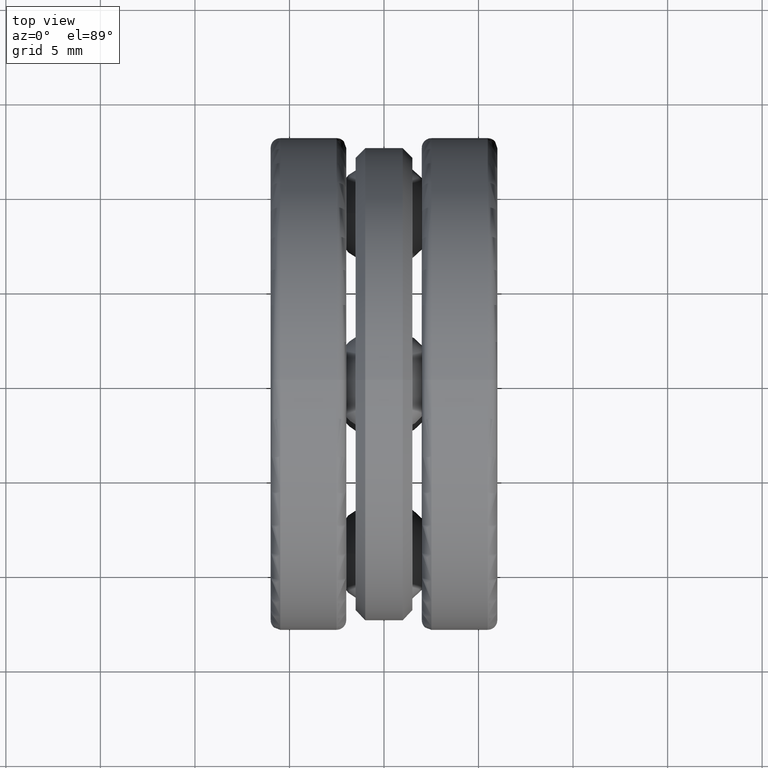
[diagram: clean part render]
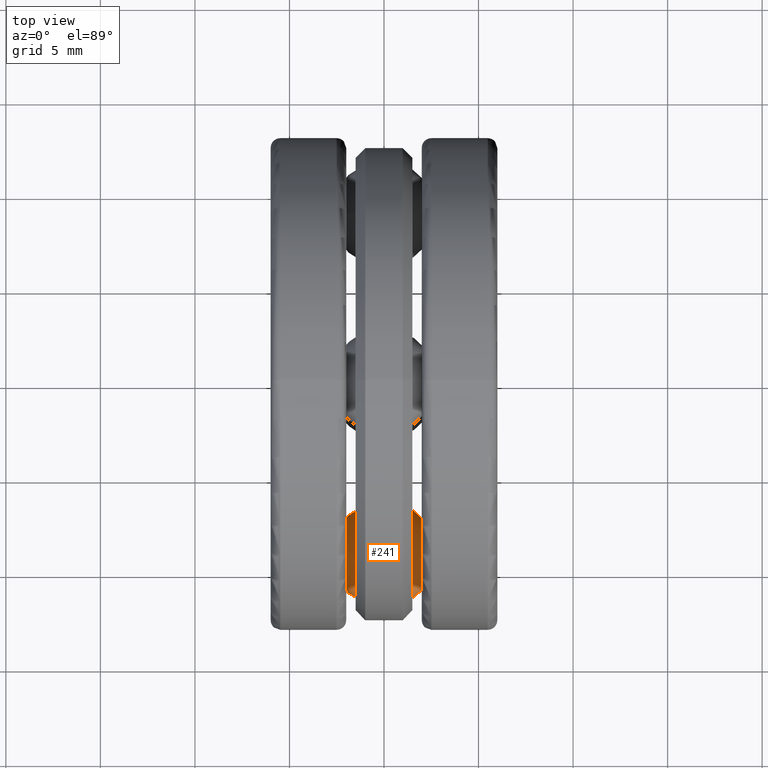
[diagram: same view with one face highlighted and labeled with its STEP entity id]
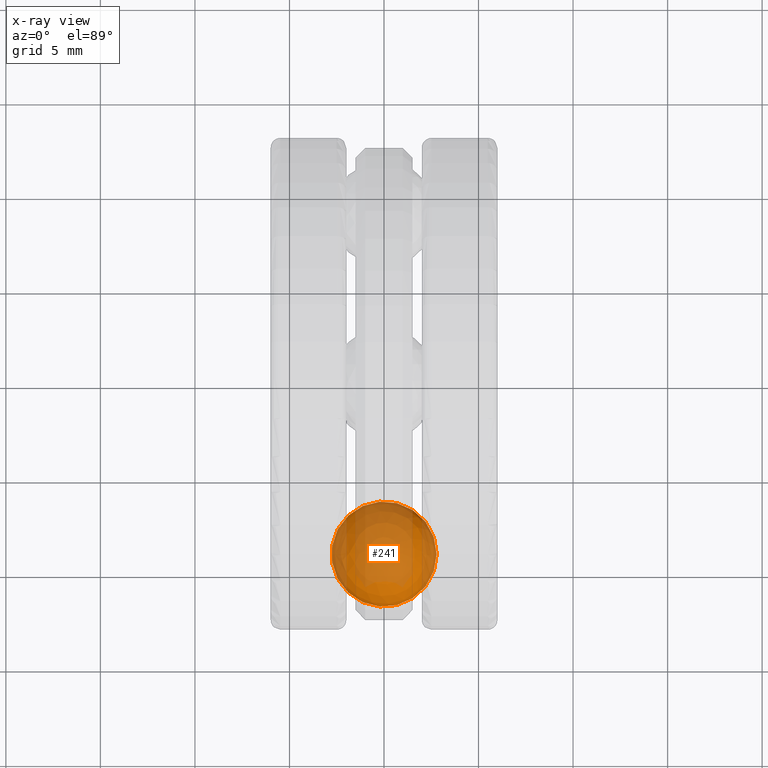
[diagram: x-ray of the same camera — body ghosted, the highlighted face saturated]
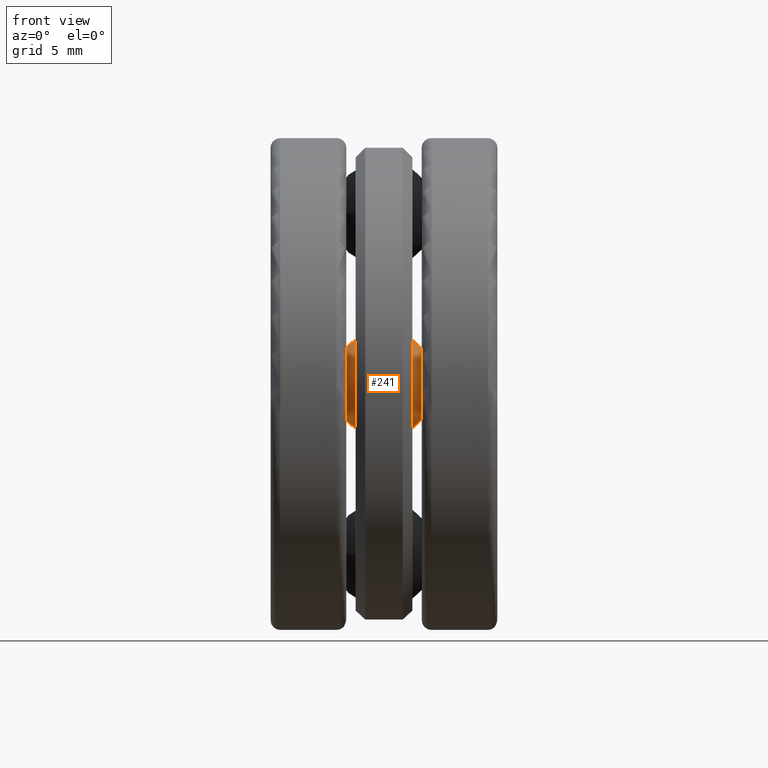
[diagram: same view with one face highlighted and labeled with its STEP entity id]
A machine part, top view. The second image highlights one B-rep face of the part: STEP entity #241.
The next image is the same camera in x-ray: the body ghosted, the highlighted face saturated — about 69% of this face is hidden behind the body in this view.
A second angle (front view) of the same face is appended — the face is thin or edge-on in the first view.
In plain terms, the highlighted spherical surface has radius 2.7813 mm.
Its self-contained STEP definition (entity closure, byte-faithful):
#59 = SPHERICAL_SURFACE ( 'NONE', #294, 0.1094999999999999600 ) ;
#112 = CARTESIAN_POINT ( 'NONE',  ( 2.337818946421670800E-017, -0.3545000000000000900, 0.0000000000000000000 ) ) ;
#241 = ADVANCED_FACE ( 'NONE', ( ), #59, .T. ) ;
#294 = AXIS2_PLACEMENT_3D ( 'NONE', #112, #674, #558 ) ;
#558 = DIRECTION ( 'NONE',  ( -1.000000000000000000, 0.0000000000000000000, 0.0000000000000000000 ) ) ;
#674 = DIRECTION ( 'NONE',  ( -0.0000000000000000000, -0.0000000000000000000, -1.000000000000000000 ) ) ;